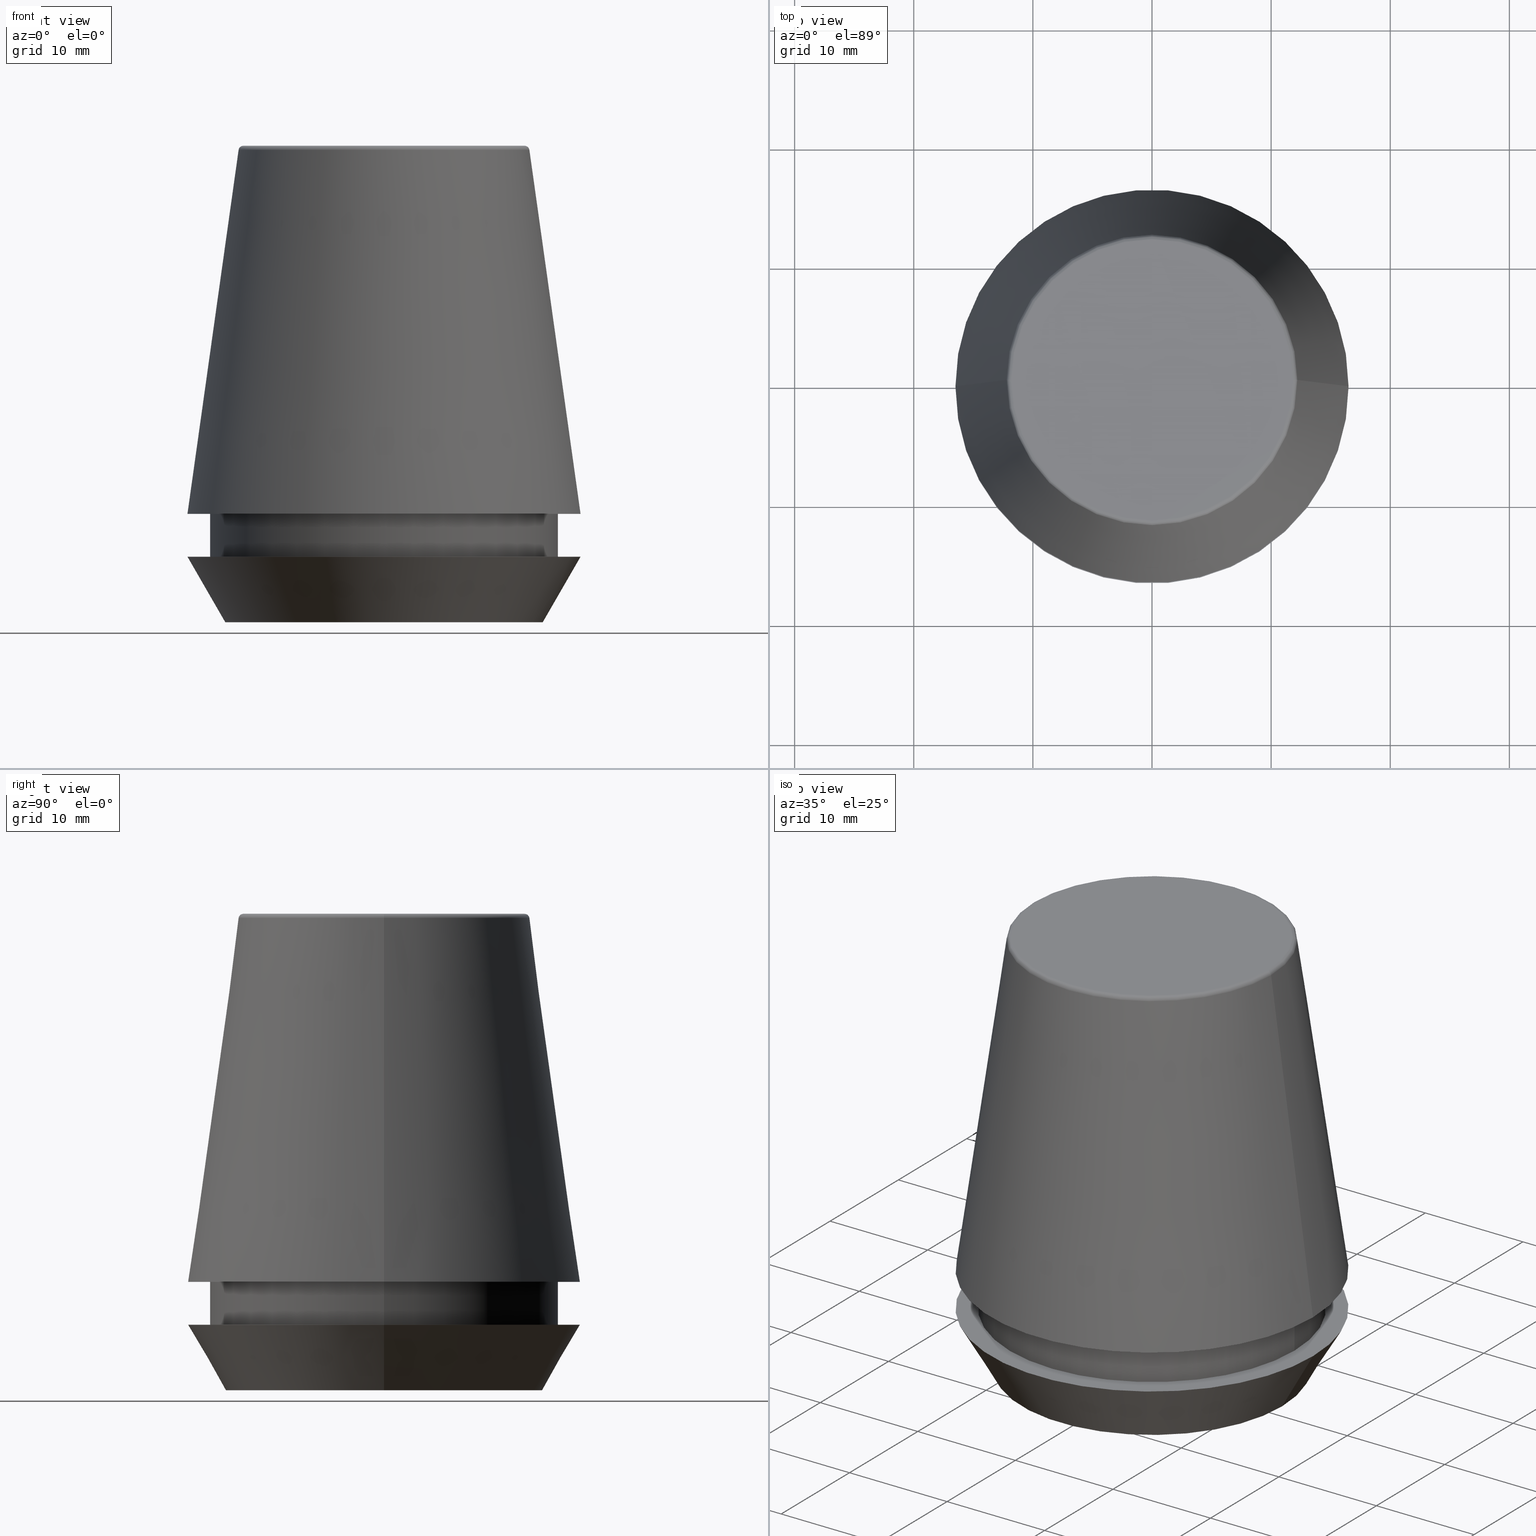
[diagram: canonical four-view strip — front | top / right | iso, engineering-drawing reading convention]
A machine part, canonical four-view strip (front | top / right | iso — engineering-drawing reading convention). The complete STEP part file that produces these views, byte-faithful:
ISO-10303-21;
HEADER;
FILE_DESCRIPTION (( 'STEP AP203' ),
    '1' );
FILE_NAME ('TAP COLLET ER 32G  6.3 X 5.0.STEP',
    '2019-04-09T10:55:28',
    ( '' ),
    ( '' ),
    'SwSTEP 2.0',
    'SolidWorks 2014',
    '' );
FILE_SCHEMA (( 'CONFIG_CONTROL_DESIGN' ));
ENDSEC;

DATA;
#1 = DIRECTION ( 'NONE',  ( -0.0000000000000000000, -0.0000000000000000000, 1.000000000000000000 ) ) ;
#2 = DIRECTION ( 'NONE',  ( -0.0000000000000000000, -0.0000000000000000000, 1.000000000000000000 ) ) ;
#3 = APPROVAL_STATUS ( 'not_yet_approved' ) ;
#4 = EDGE_CURVE ( 'NONE', #102, #286, #310, .T. ) ;
#5 = CLOSED_SHELL ( 'NONE', ( #341, #41, #96, #100, #75, #351, #370, #225, #87, #19, #71, #47 ) ) ;
#6 = CARTESIAN_POINT ( 'NONE',  ( 0.0000000000000000000, 0.0000000000000000000, 5.500000000000005300 ) ) ;
#7 = EDGE_CURVE ( 'NONE', #222, #298, #186, .T. ) ;
#8 = APPROVAL_ROLE ( '' ) ;
#9 = CARTESIAN_POINT ( 'NONE',  ( 0.0000000000000000000, 0.0000000000000000000, 5.500000000000005300 ) ) ;
#10 = APPROVAL_ROLE ( '' ) ;
#11 = DIRECTION ( 'NONE',  ( 1.000000000000000000, 0.0000000000000000000, 0.0000000000000000000 ) ) ;
#12 = CIRCLE ( 'NONE', #369, 16.50000000000000000 ) ;
#13 = CIRCLE ( 'NONE', #179, 0.4000000000000028000 ) ;
#14 = VERTEX_POINT ( 'NONE', #69 ) ;
#15 = ORIENTED_EDGE ( 'NONE', *, *, #120, .T. ) ;
#16 = AXIS2_PLACEMENT_3D ( 'NONE', #193, #119, #223 ) ;
#17 = EDGE_CURVE ( 'NONE', #118, #234, #12, .T. ) ;
#18 = DATE_AND_TIME ( #52, #366 ) ;
#19 = ADVANCED_FACE ( 'NONE', ( #283, #289 ), #364, .F. ) ;
#20 = APPROVAL_PERSON_ORGANIZATION ( #29, #148, #8 ) ;
#21 = LINE ( 'NONE', #250, #63 ) ;
#22 = DIRECTION ( 'NONE',  ( -0.0000000000000000000, -0.0000000000000000000, 1.000000000000000000 ) ) ;
#23 = CC_DESIGN_PERSON_AND_ORGANIZATION_ASSIGNMENT ( #137, #199, ( #43 ) ) ;
#24 = EDGE_LOOP ( 'NONE', ( #72, #382, #114, #170 ) ) ;
#25 = DIRECTION ( 'NONE',  ( 1.000000000000000000, 0.0000000000000000000, 0.0000000000000000000 ) ) ;
#26 = EDGE_CURVE ( 'NONE', #257, #118, #202, .T. ) ;
#27 = DIRECTION ( 'NONE',  ( -1.000000000000000000, 0.0000000000000000000, -0.0000000000000000000 ) ) ;
#28 = CARTESIAN_POINT ( 'NONE',  ( 0.0000000000000000000, 0.0000000000000000000, 0.0000000000000000000 ) ) ;
#29 = PERSON_AND_ORGANIZATION ( #224, #381 ) ;
#30 = CALENDAR_DATE ( 2019, 9, 4 ) ;
#31 = ORIENTED_EDGE ( 'NONE', *, *, #154, .F. ) ;
#32 = DIRECTION ( 'NONE',  ( -0.0000000000000000000, -0.0000000000000000000, 1.000000000000000000 ) ) ;
#33 = ORIENTED_EDGE ( 'NONE', *, *, #4, .T. ) ;
#34 = CARTESIAN_POINT ( 'NONE',  ( 0.0000000000000000000, 0.0000000000000000000, 40.00000000000000700 ) ) ;
#35 = AXIS2_PLACEMENT_3D ( 'NONE', #116, #2, #245 ) ;
#36 = ORIENTED_EDGE ( 'NONE', *, *, #235, .F. ) ;
#37 = DIRECTION ( 'NONE',  ( 0.0000000000000000000, 0.0000000000000000000, -1.000000000000000000 ) ) ;
#38 = DIRECTION ( 'NONE',  ( -0.0000000000000000000, -0.0000000000000000000, 1.000000000000000000 ) ) ;
#39 = PERSON_AND_ORGANIZATION_ROLE ( 'creator' ) ;
#40 = DIRECTION ( 'NONE',  ( -0.0000000000000000000, -0.0000000000000000000, 1.000000000000000000 ) ) ;
#41 = ADVANCED_FACE ( 'NONE', ( #166 ), #304, .T. ) ;
#42 = DIRECTION ( 'NONE',  ( 1.000000000000000000, 0.0000000000000000000, 0.0000000000000000000 ) ) ;
#43 = SECURITY_CLASSIFICATION ( '', '', #276 ) ;
#44 = PLANE ( 'NONE',  #282 ) ;
#45 = AXIS2_PLACEMENT_3D ( 'NONE', #195, #194, #136 ) ;
#46 = CARTESIAN_POINT ( 'NONE',  ( 14.60000000000000000, 0.0000000000000000000, 5.500000000000005300 ) ) ;
#47 = ADVANCED_FACE ( 'NONE', ( #230 ), #383, .T. ) ;
#48 = AXIS2_PLACEMENT_3D ( 'NONE', #297, #91, #361 ) ;
#49 = CIRCLE ( 'NONE', #67, 14.60000000000000000 ) ;
#50 = CIRCLE ( 'NONE', #133, 14.60000000000000000 ) ;
#51 = EDGE_LOOP ( 'NONE', ( #206, #190 ) ) ;
#52 = CALENDAR_DATE ( 2019, 9, 4 ) ;
#53 = AXIS2_PLACEMENT_3D ( 'NONE', #300, #38, #246 ) ;
#54 = CARTESIAN_POINT ( 'NONE',  ( 0.0000000000000000000, 16.50000000000000000, 5.500000000000002700 ) ) ;
#55 = ORIENTED_EDGE ( 'NONE', *, *, #330, .F. ) ;
#56 = CC_DESIGN_DATE_AND_TIME_ASSIGNMENT ( #353, #126, ( #43 ) ) ;
#57 = EDGE_CURVE ( 'NONE', #257, #292, #134, .T. ) ;
#58 = DIRECTION ( 'NONE',  ( -0.1391731009600586900, 0.0000000000000000000, -0.9902680687415712500 ) ) ;
#59 = PRODUCT_DEFINITION_SHAPE ( 'NONE', 'NONE',  #313 ) ;
#60 = DIRECTION ( 'NONE',  ( -0.0000000000000000000, -0.0000000000000000000, 1.000000000000000000 ) ) ;
#61 = CC_DESIGN_PERSON_AND_ORGANIZATION_ASSIGNMENT ( #142, #39, ( #167 ) ) ;
#62 = FACE_OUTER_BOUND ( 'NONE', #192, .T. ) ;
#63 = VECTOR ( 'NONE', #58, 1000.000000000000000 ) ;
#64 = CARTESIAN_POINT ( 'NONE',  ( -14.60000000000000000, 1.787984326755135800E-015, 101.8074564848000400 ) ) ;
#65 = PLANE ( 'NONE',  #263 ) ;
#66 = APPROVAL_ROLE ( '' ) ;
#67 = AXIS2_PLACEMENT_3D ( 'NONE', #131, #99, #386 ) ;
#68 = CARTESIAN_POINT ( 'NONE',  ( -11.80989888411031400, 1.470550059081603400E-015, 40.00000000000000700 ) ) ;
#69 = CARTESIAN_POINT ( 'NONE',  ( -12.20600611160694300, 0.0000000000000000000, 39.65566924038402900 ) ) ;
#70 = VERTEX_POINT ( 'NONE', #363 ) ;
#71 = ADVANCED_FACE ( 'NONE', ( #278 ), #205, .T. ) ;
#72 = ORIENTED_EDGE ( 'NONE', *, *, #122, .F. ) ;
#73 = APPROVAL_STATUS ( 'not_yet_approved' ) ;
#74 = ORIENTED_EDGE ( 'NONE', *, *, #249, .F. ) ;
#75 = ADVANCED_FACE ( 'NONE', ( #198 ), #65, .F. ) ;
#76 = ORIENTED_EDGE ( 'NONE', *, *, #160, .F. ) ;
#77 = EDGE_LOOP ( 'NONE', ( #80, #101, #78, #329 ) ) ;
#78 = ORIENTED_EDGE ( 'NONE', *, *, #330, .T. ) ;
#79 = CIRCLE ( 'NONE', #380, 12.20600611160694300 ) ;
#80 = ORIENTED_EDGE ( 'NONE', *, *, #372, .F. ) ;
#81 = ORIENTED_EDGE ( 'NONE', *, *, #228, .T. ) ;
#82 = CARTESIAN_POINT ( 'NONE',  ( 0.0000000000000000000, 0.0000000000000000000, 40.00000000000000700 ) ) ;
#83 = ORIENTED_EDGE ( 'NONE', *, *, #122, .T. ) ;
#84 = UNCERTAINTY_MEASURE_WITH_UNIT (LENGTH_MEASURE( 1.000000000000000100E-005 ), #254, 'distance_accuracy_value', 'NONE');
#85 = DIRECTION ( 'NONE',  ( 1.000000000000000000, 0.0000000000000000000, 0.0000000000000000000 ) ) ;
#86 = ORIENTED_EDGE ( 'NONE', *, *, #215, .T. ) ;
#87 = ADVANCED_FACE ( 'NONE', ( #316 ), #162, .T. ) ;
#88 = DIRECTION ( 'NONE',  ( 0.0000000000000000000, -1.000000000000000000, 0.0000000000000000000 ) ) ;
#89 = DIRECTION ( 'NONE',  ( -0.0000000000000000000, -0.0000000000000000000, 1.000000000000000000 ) ) ;
#90 = TOROIDAL_SURFACE ( 'NONE', #340, 11.80989888411031400, 0.4000000000000026900 ) ;
#91 = DIRECTION ( 'NONE',  ( 0.0000000000000000000, 0.0000000000000000000, -1.000000000000000000 ) ) ;
#92 = APPLICATION_CONTEXT ( 'configuration controlled 3d designs of mechanical parts and assemblies' ) ;
#93 = ORIENTED_EDGE ( 'NONE', *, *, #235, .T. ) ;
#94 = EDGE_CURVE ( 'NONE', #262, #271, #258, .T. ) ;
#95 = DIRECTION ( 'NONE',  ( 0.0000000000000000000, 0.0000000000000000000, -1.000000000000000000 ) ) ;
#96 = ADVANCED_FACE ( 'NONE', ( #62 ), #311, .T. ) ;
#97 = CARTESIAN_POINT ( 'NONE',  ( -14.60000000000000000, 1.787984326755135800E-015, 5.500000000000005300 ) ) ;
#98 = FACE_OUTER_BOUND ( 'NONE', #247, .T. ) ;
#99 = DIRECTION ( 'NONE',  ( -0.0000000000000000000, -0.0000000000000000000, 1.000000000000000000 ) ) ;
#100 = ADVANCED_FACE ( 'NONE', ( #171 ), #279, .T. ) ;
#101 = ORIENTED_EDGE ( 'NONE', *, *, #183, .F. ) ;
#102 = VERTEX_POINT ( 'NONE', #241 ) ;
#103 = DIRECTION ( 'NONE',  ( -0.0000000000000000000, -0.0000000000000000000, 1.000000000000000000 ) ) ;
#104 = PERSON_AND_ORGANIZATION ( #224, #381 ) ;
#105 = ORIENTED_EDGE ( 'NONE', *, *, #221, .F. ) ;
#106 = VECTOR ( 'NONE', #277, 1000.000000000000000 ) ;
#107 = ORIENTED_EDGE ( 'NONE', *, *, #349, .F. ) ;
#108 = ORIENTED_EDGE ( 'NONE', *, *, #17, .T. ) ;
#109 = DIRECTION ( 'NONE',  ( 1.000000000000000000, 0.0000000000000000000, 0.0000000000000000000 ) ) ;
#110 = DIRECTION ( 'NONE',  ( 1.000000000000000000, 0.0000000000000000000, 0.0000000000000000000 ) ) ;
#111 = DIRECTION ( 'NONE',  ( 1.000000000000000000, 0.0000000000000000000, 0.0000000000000000000 ) ) ;
#112 = CC_DESIGN_APPROVAL ( #148, ( #167 ) ) ;
#113 = VECTOR ( 'NONE', #288, 1000.000000000000000 ) ;
#114 = ORIENTED_EDGE ( 'NONE', *, *, #308, .T. ) ;
#115 = DATE_AND_TIME ( #270, #130 ) ;
#116 = CARTESIAN_POINT ( 'NONE',  ( 0.0000000000000000000, 0.0000000000000000000, 0.0000000000000000000 ) ) ;
#117 = APPROVAL_PERSON_ORGANIZATION ( #132, #129, #10 ) ;
#118 = VERTEX_POINT ( 'NONE', #355 ) ;
#119 = DIRECTION ( 'NONE',  ( 0.0000000000000000000, -0.0000000000000000000, 1.000000000000000000 ) ) ;
#120 = EDGE_CURVE ( 'NONE', #303, #375, #49, .T. ) ;
#121 = DIRECTION ( 'NONE',  ( 1.000000000000000000, 0.0000000000000000000, 0.0000000000000000000 ) ) ;
#122 = EDGE_CURVE ( 'NONE', #14, #271, #13, .T. ) ;
#123 = CARTESIAN_POINT ( 'NONE',  ( 0.0000000000000000000, 0.0000000000000000000, 9.099999999999997900 ) ) ;
#124 = APPROVAL_STATUS ( 'not_yet_approved' ) ;
#125 = PLANE ( 'NONE',  #197 ) ;
#126 = DATE_TIME_ROLE ( 'classification_date' ) ;
#127 = CARTESIAN_POINT ( 'NONE',  ( -11.80989888411031400, 1.446295486667959300E-015, 39.60000000000000100 ) ) ;
#128 = ORIENTED_EDGE ( 'NONE', *, *, #57, .T. ) ;
#129 = APPROVAL ( #73, 'UNSPECIFIED' ) ;
#130 = LOCAL_TIME ( 16, 25, 28.00000000000000000, #377 ) ;
#131 = CARTESIAN_POINT ( 'NONE',  ( 0.0000000000000000000, 0.0000000000000000000, 5.500000000000005300 ) ) ;
#132 = PERSON_AND_ORGANIZATION ( #224, #381 ) ;
#133 = AXIS2_PLACEMENT_3D ( 'NONE', #9, #40, #227 ) ;
#134 = CIRCLE ( 'NONE', #35, 13.32457351945710200 ) ;
#135 = ORIENTED_EDGE ( 'NONE', *, *, #221, .T. ) ;
#136 = DIRECTION ( 'NONE',  ( 1.000000000000000000, 0.0000000000000000000, 0.0000000000000000000 ) ) ;
#137 = PERSON_AND_ORGANIZATION ( #224, #381 ) ;
#138 = LOCAL_TIME ( 16, 25, 28.00000000000000000, #344 ) ;
#139 = CARTESIAN_POINT ( 'NONE',  ( -13.32457351945710200, 1.826228424826902600E-015, 0.0000000000000000000 ) ) ;
#140 = ORIENTED_EDGE ( 'NONE', *, *, #94, .T. ) ;
#141 = DIRECTION ( 'NONE',  ( 1.000000000000000000, 0.0000000000000000000, 0.0000000000000000000 ) ) ;
#142 = PERSON_AND_ORGANIZATION ( #224, #381 ) ;
#143 = AXIS2_PLACEMENT_3D ( 'NONE', #82, #285, #109 ) ;
#144 = ORIENTED_EDGE ( 'NONE', *, *, #4, .F. ) ;
#145 = ORIENTED_EDGE ( 'NONE', *, *, #239, .T. ) ;
#146 = EDGE_LOOP ( 'NONE', ( #135, #33 ) ) ;
#147 = PRODUCT ( 'TAP COLLET ER 32G  6.3 X 5.0', 'TAP COLLET ER 32G  6.3 X 5.0', '', ( #173 ) ) ;
#148 = APPROVAL ( #124, 'UNSPECIFIED' ) ;
#149 = CARTESIAN_POINT ( 'NONE',  ( 0.0000000000000000000, 0.0000000000000000000, 101.8074564848000400 ) ) ;
#150 = APPLICATION_PROTOCOL_DEFINITION ( 'international standard', 'config_control_design', 1994, #243 ) ;
#151 = COORDINATED_UNIVERSAL_TIME_OFFSET ( 5, 30, .AHEAD. ) ;
#152 = DIRECTION ( 'NONE',  ( 1.000000000000000000, 0.0000000000000000000, 0.0000000000000000000 ) ) ;
#153 = CIRCLE ( 'NONE', #365, 16.50032537154048700 ) ;
#154 = EDGE_CURVE ( 'NONE', #303, #102, #267, .T. ) ;
#155 = APPROVAL_DATE_TIME ( #115, #148 ) ;
#156 = DIRECTION ( 'NONE',  ( -0.4999999999999947300, 6.123233995736700700E-017, 0.8660254037844418200 ) ) ;
#157 = PERSON_AND_ORGANIZATION ( #224, #381 ) ;
#158 = EDGE_LOOP ( 'NONE', ( #140, #86 ) ) ;
#159 = ADVANCED_BREP_SHAPE_REPRESENTATION ( 'TAP COLLET ER 32G  6.3 X 5.0', ( #264, #305 ), #274 ) ;
#160 = EDGE_CURVE ( 'NONE', #292, #234, #232, .T. ) ;
#161 = DIRECTION ( 'NONE',  ( -0.0000000000000000000, -0.0000000000000000000, 1.000000000000000000 ) ) ;
#162 = CYLINDRICAL_SURFACE ( 'NONE', #374, 14.60000000000000000 ) ;
#163 = EDGE_LOOP ( 'NONE', ( #81, #237, #36, #76 ) ) ;
#164 = CC_DESIGN_APPROVAL ( #324, ( #313 ) ) ;
#165 = AXIS2_PLACEMENT_3D ( 'NONE', #248, #95, #302 ) ;
#166 = FACE_OUTER_BOUND ( 'NONE', #315, .T. ) ;
#167 = PRODUCT_DEFINITION_FORMATION_WITH_SPECIFIED_SOURCE ( 'ANY', '', #147, .NOT_KNOWN. ) ;
#168 = CARTESIAN_POINT ( 'NONE',  ( 11.80989888411031400, 0.0000000000000000000, 39.60000000000000100 ) ) ;
#169 = COORDINATED_UNIVERSAL_TIME_OFFSET ( 5, 30, .AHEAD. ) ;
#170 = ORIENTED_EDGE ( 'NONE', *, *, #215, .F. ) ;
#171 = FACE_OUTER_BOUND ( 'NONE', #163, .T. ) ;
#172 = AXIS2_PLACEMENT_3D ( 'NONE', #322, #327, #141 ) ;
#173 = MECHANICAL_CONTEXT ( 'NONE', #243, 'mechanical' ) ;
#174 = CONICAL_SURFACE ( 'NONE', #189, 13.32457351945710200, 0.5235987755982927100 ) ;
#175 = APPROVAL_DATE_TIME ( #280, #324 ) ;
#176 = DIRECTION ( 'NONE',  ( 0.0000000000000000000, 0.0000000000000000000, -1.000000000000000000 ) ) ;
#177 = CC_DESIGN_SECURITY_CLASSIFICATION ( #43, ( #167 ) ) ;
#178 = VECTOR ( 'NONE', #32, 1000.000000000000000 ) ;
#179 = AXIS2_PLACEMENT_3D ( 'NONE', #127, #301, #290 ) ;
#180 = PERSON_AND_ORGANIZATION ( #224, #381 ) ;
#181 = ORIENTED_EDGE ( 'NONE', *, *, #7, .F. ) ;
#182 =( NAMED_UNIT ( * ) PLANE_ANGLE_UNIT ( ) SI_UNIT ( $, .RADIAN. ) );
#183 = EDGE_CURVE ( 'NONE', #14, #70, #207, .T. ) ;
#184 = CARTESIAN_POINT ( 'NONE',  ( 0.0000000000000000000, 0.0000000000000000000, 39.65566924038402900 ) ) ;
#185 = CARTESIAN_POINT ( 'NONE',  ( 14.60000000000000000, 0.0000000000000000000, 101.8074564848000400 ) ) ;
#186 = CIRCLE ( 'NONE', #332, 16.50032537154048700 ) ;
#187 = DIRECTION ( 'NONE',  ( 1.000000000000000000, 0.0000000000000000000, 0.0000000000000000000 ) ) ;
#188 = CC_DESIGN_PERSON_AND_ORGANIZATION_ASSIGNMENT ( #104, #226, ( #313 ) ) ;
#189 = AXIS2_PLACEMENT_3D ( 'NONE', #328, #238, #335 ) ;
#190 = ORIENTED_EDGE ( 'NONE', *, *, #120, .F. ) ;
#191 = CARTESIAN_POINT ( 'NONE',  ( -13.32457351945710200, 1.631789631060672300E-015, 0.0000000000000000000 ) ) ;
#192 = EDGE_LOOP ( 'NONE', ( #145, #307, #105, #74 ) ) ;
#193 = CARTESIAN_POINT ( 'NONE',  ( 0.0000000000000000000, 16.50032537154048700, 9.099999999999999600 ) ) ;
#194 = DIRECTION ( 'NONE',  ( -0.0000000000000000000, -0.0000000000000000000, 1.000000000000000000 ) ) ;
#195 = CARTESIAN_POINT ( 'NONE',  ( 0.0000000000000000000, 0.0000000000000000000, 9.099999999999997900 ) ) ;
#196 = CARTESIAN_POINT ( 'NONE',  ( 11.80989888411031400, 0.0000000000000000000, 40.00000000000000700 ) ) ;
#197 = AXIS2_PLACEMENT_3D ( 'NONE', #54, #240, #27 ) ;
#198 = FACE_OUTER_BOUND ( 'NONE', #158, .T. ) ;
#199 = PERSON_AND_ORGANIZATION_ROLE ( 'classification_officer' ) ;
#200 = ORIENTED_EDGE ( 'NONE', *, *, #26, .F. ) ;
#201 = AXIS2_PLACEMENT_3D ( 'NONE', #149, #269, #217 ) ;
#202 = LINE ( 'NONE', #191, #346 ) ;
#203 = AXIS2_PLACEMENT_3D ( 'NONE', #28, #331, #111 ) ;
#204 = CC_DESIGN_DATE_AND_TIME_ASSIGNMENT ( #318, #208, ( #313 ) ) ;
#205 = CONICAL_SURFACE ( 'NONE', #48, 16.50032537154048700, 0.1396263401595395900 ) ;
#206 = ORIENTED_EDGE ( 'NONE', *, *, #239, .F. ) ;
#207 = CIRCLE ( 'NONE', #172, 12.20600611160694300 ) ;
#208 = DATE_TIME_ROLE ( 'creation_date' ) ;
#209 = DIRECTION ( 'NONE',  ( 0.0000000000000000000, 0.0000000000000000000, 1.000000000000000000 ) ) ;
#210 = CARTESIAN_POINT ( 'NONE',  ( 16.50032537154048700, 2.020707065114692300E-015, 9.099999999999997900 ) ) ;
#211 = CARTESIAN_POINT ( 'NONE',  ( 16.50032537154048700, 2.020707065114692300E-015, 9.099999999999997900 ) ) ;
#212 = DIRECTION ( 'NONE',  ( -0.0000000000000000000, -0.0000000000000000000, 1.000000000000000000 ) ) ;
#213 = CARTESIAN_POINT ( 'NONE',  ( 13.32457351945710200, 0.0000000000000000000, 0.0000000000000000000 ) ) ;
#214 = FACE_OUTER_BOUND ( 'NONE', #338, .T. ) ;
#215 = EDGE_CURVE ( 'NONE', #271, #262, #342, .T. ) ;
#216 = DIRECTION ( 'NONE',  ( -0.0000000000000000000, -0.0000000000000000000, 1.000000000000000000 ) ) ;
#217 = DIRECTION ( 'NONE',  ( 1.000000000000000000, 0.0000000000000000000, 0.0000000000000000000 ) ) ;
#218 = COORDINATED_UNIVERSAL_TIME_OFFSET ( 5, 30, .AHEAD. ) ;
#219 = CARTESIAN_POINT ( 'NONE',  ( 0.0000000000000000000, 0.0000000000000000000, 101.8074564848000400 ) ) ;
#220 = PERSON_AND_ORGANIZATION_ROLE ( 'design_owner' ) ;
#221 = EDGE_CURVE ( 'NONE', #286, #102, #378, .T. ) ;
#222 = VERTEX_POINT ( 'NONE', #210 ) ;
#223 = DIRECTION ( 'NONE',  ( 1.000000000000000000, 0.0000000000000000000, 0.0000000000000000000 ) ) ;
#224 = PERSON ( 'UNSPECIFIED', 'UNSPECIFIED', 'UNSPECIFIED', ('UNSPECIFIED'), ('UNSPECIFIED'), ('UNSPECIFIED') ) ;
#225 = ADVANCED_FACE ( 'NONE', ( #348, #244 ), #125, .F. ) ;
#226 = PERSON_AND_ORGANIZATION_ROLE ( 'creator' ) ;
#227 = DIRECTION ( 'NONE',  ( 1.000000000000000000, 0.0000000000000000000, 0.0000000000000000000 ) ) ;
#228 = EDGE_CURVE ( 'NONE', #292, #257, #253, .T. ) ;
#229 = ORIENTED_EDGE ( 'NONE', *, *, #309, .T. ) ;
#230 = FACE_OUTER_BOUND ( 'NONE', #24, .T. ) ;
#231 = ORIENTED_EDGE ( 'NONE', *, *, #372, .T. ) ;
#232 = LINE ( 'NONE', #213, #320 ) ;
#233 = DIRECTION ( 'NONE',  ( 1.000000000000000000, 0.0000000000000000000, 0.0000000000000000000 ) ) ;
#234 = VERTEX_POINT ( 'NONE', #266 ) ;
#235 = EDGE_CURVE ( 'NONE', #234, #118, #333, .T. ) ;
#236 = LOCAL_TIME ( 16, 25, 28.00000000000000000, #169 ) ;
#237 = ORIENTED_EDGE ( 'NONE', *, *, #26, .T. ) ;
#238 = DIRECTION ( 'NONE',  ( -0.0000000000000000000, -0.0000000000000000000, 1.000000000000000000 ) ) ;
#239 = EDGE_CURVE ( 'NONE', #375, #303, #50, .T. ) ;
#240 = DIRECTION ( 'NONE',  ( 0.0000000000000000000, 0.0000000000000000000, -1.000000000000000000 ) ) ;
#241 = CARTESIAN_POINT ( 'NONE',  ( -14.60000000000000000, 1.787984326755135800E-015, 9.099999999999997900 ) ) ;
#242 = CARTESIAN_POINT ( 'NONE',  ( 14.60000000000000000, 0.0000000000000000000, 9.099999999999997900 ) ) ;
#243 = APPLICATION_CONTEXT ( 'configuration controlled 3d designs of mechanical parts and assemblies' ) ;
#244 = FACE_OUTER_BOUND ( 'NONE', #350, .T. ) ;
#245 = DIRECTION ( 'NONE',  ( 1.000000000000000000, 0.0000000000000000000, 0.0000000000000000000 ) ) ;
#246 = DIRECTION ( 'NONE',  ( 1.000000000000000000, 0.0000000000000000000, 0.0000000000000000000 ) ) ;
#247 = EDGE_LOOP ( 'NONE', ( #229, #83, #312, #317 ) ) ;
#248 = CARTESIAN_POINT ( 'NONE',  ( 0.0000000000000000000, 0.0000000000000000000, 9.099999999999997900 ) ) ;
#249 = EDGE_CURVE ( 'NONE', #375, #286, #354, .T. ) ;
#250 = CARTESIAN_POINT ( 'NONE',  ( -16.50032537154048700, 0.0000000000000000000, 9.099999999999997900 ) ) ;
#251 = APPROVAL_DATE_TIME ( #18, #129 ) ;
#252 = DIRECTION ( 'NONE',  ( -0.0000000000000000000, -0.0000000000000000000, 1.000000000000000000 ) ) ;
#253 = CIRCLE ( 'NONE', #203, 13.32457351945710200 ) ;
#254 =( LENGTH_UNIT ( ) NAMED_UNIT ( * ) SI_UNIT ( .MILLI., .METRE. ) );
#255 = SHAPE_DEFINITION_REPRESENTATION ( #59, #159 ) ;
#256 = APPROVAL_PERSON_ORGANIZATION ( #157, #324, #66 ) ;
#257 = VERTEX_POINT ( 'NONE', #139 ) ;
#258 = CIRCLE ( 'NONE', #368, 11.80989888411031400 ) ;
#259 = PERSON_AND_ORGANIZATION_ROLE ( 'design_supplier' ) ;
#260 = DIRECTION ( 'NONE',  ( 0.0000000000000000000, -0.0000000000000000000, 1.000000000000000000 ) ) ;
#261 = LINE ( 'NONE', #211, #106 ) ;
#262 = VERTEX_POINT ( 'NONE', #196 ) ;
#263 = AXIS2_PLACEMENT_3D ( 'NONE', #337, #37, #334 ) ;
#264 = MANIFOLD_SOLID_BREP ( 'Revolve1', #5 ) ;
#265 = CARTESIAN_POINT ( 'NONE',  ( 0.0000000000000000000, 0.0000000000000000000, 0.0000000000000000000 ) ) ;
#266 = CARTESIAN_POINT ( 'NONE',  ( 16.50000000000000000, 0.0000000000000000000, 5.500000000000005300 ) ) ;
#267 = LINE ( 'NONE', #64, #178 ) ;
#268 = CARTESIAN_POINT ( 'NONE',  ( 0.0000000000000000000, 0.0000000000000000000, 0.0000000000000000000 ) ) ;
#269 = DIRECTION ( 'NONE',  ( -0.0000000000000000000, -0.0000000000000000000, 1.000000000000000000 ) ) ;
#270 = CALENDAR_DATE ( 2019, 9, 4 ) ;
#271 = VERTEX_POINT ( 'NONE', #68 ) ;
#272 = DIRECTION ( 'NONE',  ( 1.000000000000000000, 0.0000000000000000000, 0.0000000000000000000 ) ) ;
#273 = DESIGN_CONTEXT ( 'detailed design', #92, 'design' ) ;
#274 =( GEOMETRIC_REPRESENTATION_CONTEXT ( 3 ) GLOBAL_UNCERTAINTY_ASSIGNED_CONTEXT ( ( #84 ) ) GLOBAL_UNIT_ASSIGNED_CONTEXT ( ( #254, #182, #357 ) ) REPRESENTATION_CONTEXT ( 'NONE', 'WORKASPACE' ) );
#275 = CARTESIAN_POINT ( 'NONE',  ( -16.50032537154048700, 0.0000000000000000000, 9.099999999999997900 ) ) ;
#276 = SECURITY_CLASSIFICATION_LEVEL ( 'unclassified' ) ;
#277 = DIRECTION ( 'NONE',  ( 0.1391731009600586900, 1.704378926181473100E-017, -0.9902680687415712500 ) ) ;
#278 = FACE_OUTER_BOUND ( 'NONE', #77, .T. ) ;
#279 = CONICAL_SURFACE ( 'NONE', #358, 13.32457351945710200, 0.5235987755982927100 ) ;
#280 = DATE_AND_TIME ( #325, #236 ) ;
#281 = ORIENTED_EDGE ( 'NONE', *, *, #249, .T. ) ;
#282 = AXIS2_PLACEMENT_3D ( 'NONE', #314, #260, #42 ) ;
#283 = FACE_OUTER_BOUND ( 'NONE', #326, .T. ) ;
#284 = FACE_OUTER_BOUND ( 'NONE', #347, .T. ) ;
#285 = DIRECTION ( 'NONE',  ( -0.0000000000000000000, -0.0000000000000000000, 1.000000000000000000 ) ) ;
#286 = VERTEX_POINT ( 'NONE', #242 ) ;
#287 = CARTESIAN_POINT ( 'NONE',  ( 0.0000000000000000000, 0.0000000000000000000, 39.60000000000000100 ) ) ;
#288 = DIRECTION ( 'NONE',  ( -0.0000000000000000000, -0.0000000000000000000, 1.000000000000000000 ) ) ;
#289 = FACE_BOUND ( 'NONE', #146, .T. ) ;
#290 = DIRECTION ( 'NONE',  ( -1.000000000000000000, 1.224646799147352500E-016, 0.0000000000000000000 ) ) ;
#291 = DIRECTION ( 'NONE',  ( -0.0000000000000000000, -0.0000000000000000000, 1.000000000000000000 ) ) ;
#292 = VERTEX_POINT ( 'NONE', #306 ) ;
#293 = PRODUCT_RELATED_PRODUCT_CATEGORY ( 'detail', '', ( #147 ) ) ;
#294 = DIRECTION ( 'NONE',  ( 1.000000000000000000, 0.0000000000000000000, 0.0000000000000000000 ) ) ;
#295 = CALENDAR_DATE ( 2019, 9, 4 ) ;
#296 = CC_DESIGN_PERSON_AND_ORGANIZATION_ASSIGNMENT ( #180, #220, ( #147 ) ) ;
#297 = CARTESIAN_POINT ( 'NONE',  ( 0.0000000000000000000, 0.0000000000000000000, 9.099999999999997900 ) ) ;
#298 = VERTEX_POINT ( 'NONE', #275 ) ;
#299 = CC_DESIGN_APPROVAL ( #129, ( #43 ) ) ;
#300 = CARTESIAN_POINT ( 'NONE',  ( 0.0000000000000000000, 0.0000000000000000000, 39.60000000000000100 ) ) ;
#301 = DIRECTION ( 'NONE',  ( 1.224646799147353200E-016, 1.000000000000000000, 0.0000000000000000000 ) ) ;
#302 = DIRECTION ( 'NONE',  ( -1.000000000000000000, 0.0000000000000000000, 0.0000000000000000000 ) ) ;
#303 = VERTEX_POINT ( 'NONE', #97 ) ;
#304 = CONICAL_SURFACE ( 'NONE', #165, 16.50032537154048700, 0.1396263401595395900 ) ;
#305 = AXIS2_PLACEMENT_3D ( 'NONE', #265, #209, #233 ) ;
#306 = CARTESIAN_POINT ( 'NONE',  ( 13.32457351945710200, 0.0000000000000000000, 0.0000000000000000000 ) ) ;
#307 = ORIENTED_EDGE ( 'NONE', *, *, #154, .T. ) ;
#308 = EDGE_CURVE ( 'NONE', #70, #262, #367, .T. ) ;
#309 = EDGE_CURVE ( 'NONE', #70, #14, #79, .T. ) ;
#310 = CIRCLE ( 'NONE', #45, 14.60000000000000000 ) ;
#311 = CYLINDRICAL_SURFACE ( 'NONE', #201, 14.60000000000000000 ) ;
#312 = ORIENTED_EDGE ( 'NONE', *, *, #94, .F. ) ;
#313 = PRODUCT_DEFINITION ( 'UNKNOWN', '', #167, #273 ) ;
#314 = CARTESIAN_POINT ( 'NONE',  ( 0.0000000000000000000, 0.0000000000000000000, 0.0000000000000000000 ) ) ;
#315 = EDGE_LOOP ( 'NONE', ( #343, #231, #345, #55 ) ) ;
#316 = FACE_OUTER_BOUND ( 'NONE', #359, .T. ) ;
#317 = ORIENTED_EDGE ( 'NONE', *, *, #308, .F. ) ;
#318 = DATE_AND_TIME ( #295, #360 ) ;
#319 = ORIENTED_EDGE ( 'NONE', *, *, #57, .F. ) ;
#320 = VECTOR ( 'NONE', #352, 999.9999999999998900 ) ;
#321 = ORIENTED_EDGE ( 'NONE', *, *, #228, .F. ) ;
#322 = CARTESIAN_POINT ( 'NONE',  ( 0.0000000000000000000, 0.0000000000000000000, 39.65566924038402900 ) ) ;
#323 = CC_DESIGN_PERSON_AND_ORGANIZATION_ASSIGNMENT ( #336, #259, ( #167 ) ) ;
#324 = APPROVAL ( #3, 'UNSPECIFIED' ) ;
#325 = CALENDAR_DATE ( 2019, 9, 4 ) ;
#326 = EDGE_LOOP ( 'NONE', ( #107, #181 ) ) ;
#327 = DIRECTION ( 'NONE',  ( -0.0000000000000000000, -0.0000000000000000000, 1.000000000000000000 ) ) ;
#328 = CARTESIAN_POINT ( 'NONE',  ( 0.0000000000000000000, 0.0000000000000000000, 0.0000000000000000000 ) ) ;
#329 = ORIENTED_EDGE ( 'NONE', *, *, #349, .T. ) ;
#330 = EDGE_CURVE ( 'NONE', #14, #298, #21, .T. ) ;
#331 = DIRECTION ( 'NONE',  ( -0.0000000000000000000, -0.0000000000000000000, 1.000000000000000000 ) ) ;
#332 = AXIS2_PLACEMENT_3D ( 'NONE', #123, #252, #121 ) ;
#333 = CIRCLE ( 'NONE', #362, 16.50000000000000000 ) ;
#334 = DIRECTION ( 'NONE',  ( -1.000000000000000000, 0.0000000000000000000, -0.0000000000000000000 ) ) ;
#335 = DIRECTION ( 'NONE',  ( 1.000000000000000000, 0.0000000000000000000, 0.0000000000000000000 ) ) ;
#336 = PERSON_AND_ORGANIZATION ( #224, #381 ) ;
#337 = CARTESIAN_POINT ( 'NONE',  ( 0.0000000000000000000, 11.80989888411031400, 40.00000000000000700 ) ) ;
#338 = EDGE_LOOP ( 'NONE', ( #200, #128, #371, #379 ) ) ;
#339 = APPLICATION_PROTOCOL_DEFINITION ( 'international standard', 'config_control_design', 1994, #92 ) ;
#340 = AXIS2_PLACEMENT_3D ( 'NONE', #287, #60, #110 ) ;
#341 = ADVANCED_FACE ( 'NONE', ( #98 ), #90, .T. ) ;
#342 = CIRCLE ( 'NONE', #143, 11.80989888411031400 ) ;
#343 = ORIENTED_EDGE ( 'NONE', *, *, #309, .F. ) ;
#344 = COORDINATED_UNIVERSAL_TIME_OFFSET ( 5, 30, .AHEAD. ) ;
#345 = ORIENTED_EDGE ( 'NONE', *, *, #7, .T. ) ;
#346 = VECTOR ( 'NONE', #156, 999.9999999999998900 ) ;
#347 = EDGE_LOOP ( 'NONE', ( #321, #319 ) ) ;
#348 = FACE_BOUND ( 'NONE', #51, .T. ) ;
#349 = EDGE_CURVE ( 'NONE', #298, #222, #153, .T. ) ;
#350 = EDGE_LOOP ( 'NONE', ( #93, #108 ) ) ;
#351 = ADVANCED_FACE ( 'NONE', ( #284 ), #44, .F. ) ;
#352 = DIRECTION ( 'NONE',  ( 0.4999999999999947300, 0.0000000000000000000, 0.8660254037844418200 ) ) ;
#353 = DATE_AND_TIME ( #30, #138 ) ;
#354 = LINE ( 'NONE', #185, #113 ) ;
#355 = CARTESIAN_POINT ( 'NONE',  ( -16.50000000000000000, 2.020667218593133100E-015, 5.500000000000005300 ) ) ;
#356 = CARTESIAN_POINT ( 'NONE',  ( 0.0000000000000000000, 0.0000000000000000000, 9.099999999999997900 ) ) ;
#357 =( NAMED_UNIT ( * ) SI_UNIT ( $, .STERADIAN. ) SOLID_ANGLE_UNIT ( ) );
#358 = AXIS2_PLACEMENT_3D ( 'NONE', #268, #216, #187 ) ;
#359 = EDGE_LOOP ( 'NONE', ( #31, #15, #281, #144 ) ) ;
#360 = LOCAL_TIME ( 16, 25, 28.00000000000000000, #218 ) ;
#361 = DIRECTION ( 'NONE',  ( -1.000000000000000000, 0.0000000000000000000, 0.0000000000000000000 ) ) ;
#362 = AXIS2_PLACEMENT_3D ( 'NONE', #373, #22, #376 ) ;
#363 = CARTESIAN_POINT ( 'NONE',  ( 12.20600611160694300, 1.757755848304969800E-015, 39.65566924038402900 ) ) ;
#364 = PLANE ( 'NONE',  #16 ) ;
#365 = AXIS2_PLACEMENT_3D ( 'NONE', #356, #103, #11 ) ;
#366 = LOCAL_TIME ( 16, 25, 28.00000000000000000, #151 ) ;
#367 = CIRCLE ( 'NONE', #387, 0.4000000000000045200 ) ;
#368 = AXIS2_PLACEMENT_3D ( 'NONE', #34, #89, #294 ) ;
#369 = AXIS2_PLACEMENT_3D ( 'NONE', #6, #161, #272 ) ;
#370 = ADVANCED_FACE ( 'NONE', ( #214 ), #174, .T. ) ;
#371 = ORIENTED_EDGE ( 'NONE', *, *, #160, .T. ) ;
#372 = EDGE_CURVE ( 'NONE', #70, #222, #261, .T. ) ;
#373 = CARTESIAN_POINT ( 'NONE',  ( 0.0000000000000000000, 0.0000000000000000000, 5.500000000000005300 ) ) ;
#374 = AXIS2_PLACEMENT_3D ( 'NONE', #219, #1, #152 ) ;
#375 = VERTEX_POINT ( 'NONE', #46 ) ;
#376 = DIRECTION ( 'NONE',  ( 1.000000000000000000, 0.0000000000000000000, 0.0000000000000000000 ) ) ;
#377 = COORDINATED_UNIVERSAL_TIME_OFFSET ( 5, 30, .AHEAD. ) ;
#378 = CIRCLE ( 'NONE', #384, 14.60000000000000000 ) ;
#379 = ORIENTED_EDGE ( 'NONE', *, *, #17, .F. ) ;
#380 = AXIS2_PLACEMENT_3D ( 'NONE', #184, #212, #85 ) ;
#381 = ORGANIZATION ( 'UNSPECIFIED', 'UNSPECIFIED', '' ) ;
#382 = ORIENTED_EDGE ( 'NONE', *, *, #183, .T. ) ;
#383 = TOROIDAL_SURFACE ( 'NONE', #53, 11.80989888411031400, 0.4000000000000026900 ) ;
#384 = AXIS2_PLACEMENT_3D ( 'NONE', #385, #291, #25 ) ;
#385 = CARTESIAN_POINT ( 'NONE',  ( 0.0000000000000000000, 0.0000000000000000000, 9.099999999999997900 ) ) ;
#386 = DIRECTION ( 'NONE',  ( 1.000000000000000000, 0.0000000000000000000, 0.0000000000000000000 ) ) ;
#387 = AXIS2_PLACEMENT_3D ( 'NONE', #168, #88, #176 ) ;
ENDSEC;
END-ISO-10303-21;
